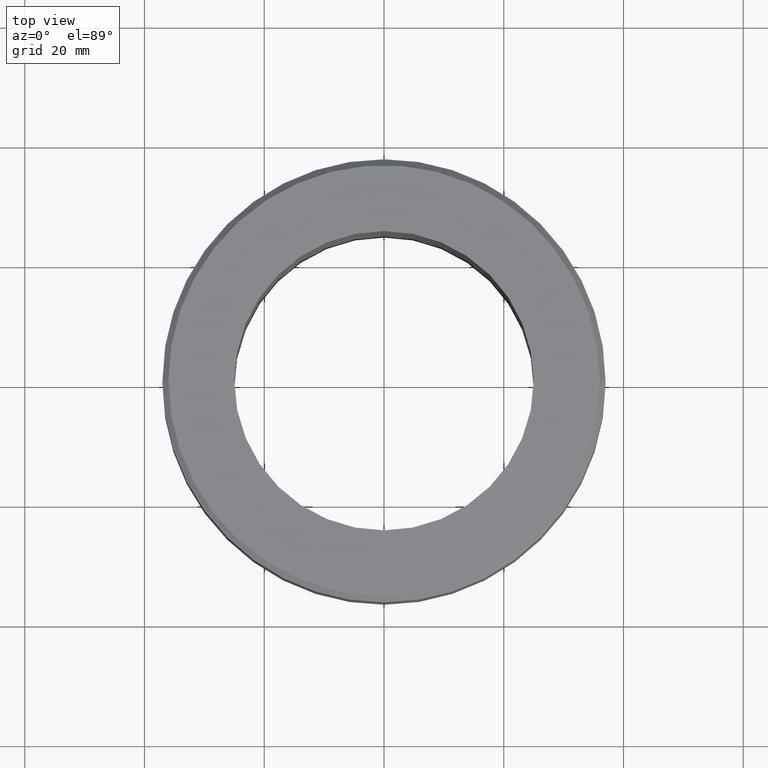
[diagram: clean part render]
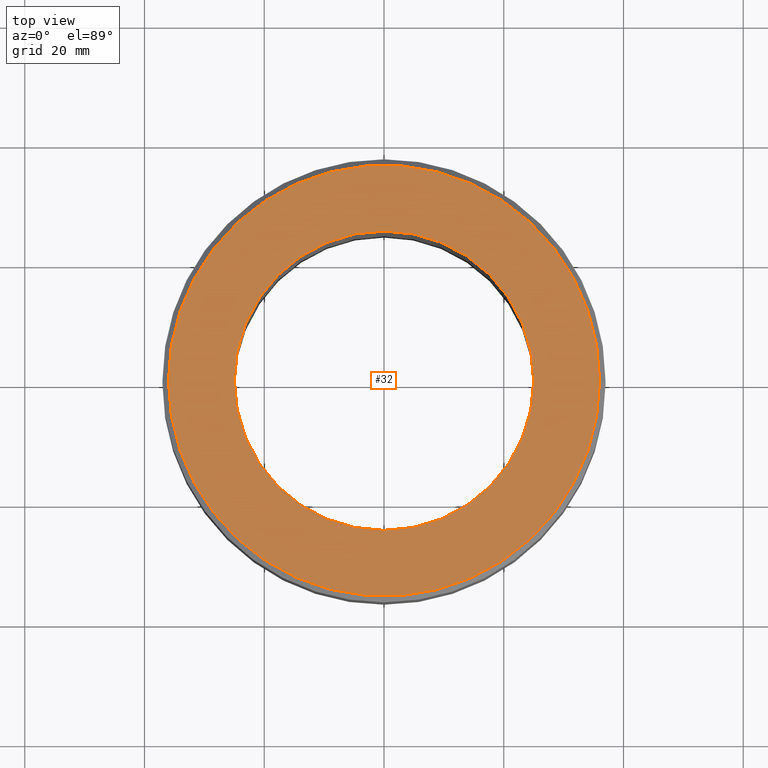
[diagram: same view with one face highlighted and labeled with its STEP entity id]
A machine part, top view. The second image highlights one B-rep face of the part: STEP entity #32.
In plain terms, the highlighted planar face has unit normal (0, -0, 1).
Its self-contained STEP definition (entity closure, byte-faithful):
#6 = CARTESIAN_POINT ( 'NONE',  ( 0.000000000000000000, 0.000000000000000000, 0.000000000000000000 ) ) ;
#9 = DIRECTION ( 'NONE',  ( 1.000000000000000000, 0.000000000000000000, 0.000000000000000000 ) ) ;
#32 = ADVANCED_FACE ( 'NONE', ( #60, #303 ), #179, .T. ) ;
#38 = AXIS2_PLACEMENT_3D ( 'NONE', #58, #355, #276 ) ;
#45 = VERTEX_POINT ( 'NONE', #502 ) ;
#46 = DIRECTION ( 'NONE',  ( 1.000000000000000000, 0.000000000000000000, 0.000000000000000000 ) ) ;
#56 = EDGE_CURVE ( 'NONE', #257, #45, #304, .T. ) ;
#58 = CARTESIAN_POINT ( 'NONE',  ( 0.000000000000000000, 0.000000000000000000, 0.000000000000000000 ) ) ;
#60 = FACE_BOUND ( 'NONE', #499, .T. ) ;
#69 = AXIS2_PLACEMENT_3D ( 'NONE', #513, #146, #322 ) ;
#83 = DIRECTION ( 'NONE',  ( -0.000000000000000000, -0.000000000000000000, 1.000000000000000000 ) ) ;
#86 = CARTESIAN_POINT ( 'NONE',  ( -36.00000000000002132, 0.000000000000000000, 0.000000000000000000 ) ) ;
#88 = CARTESIAN_POINT ( 'NONE',  ( 0.000000000000000000, 0.000000000000000000, 0.000000000000000000 ) ) ;
#94 = AXIS2_PLACEMENT_3D ( 'NONE', #220, #338, #185 ) ;
#99 = ORIENTED_EDGE ( 'NONE', *, *, #277, .F. ) ;
#146 = DIRECTION ( 'NONE',  ( -0.000000000000000000, -0.000000000000000000, 1.000000000000000000 ) ) ;
#154 = ORIENTED_EDGE ( 'NONE', *, *, #204, .T. ) ;
#175 = DIRECTION ( 'NONE',  ( -0.000000000000000000, -0.000000000000000000, 1.000000000000000000 ) ) ;
#179 = PLANE ( 'NONE',  #94 ) ;
#185 = DIRECTION ( 'NONE',  ( 1.000000000000000000, 0.000000000000000000, 0.000000000000000000 ) ) ;
#187 = EDGE_LOOP ( 'NONE', ( #154, #342 ) ) ;
#198 = CIRCLE ( 'NONE', #468, 36.00000000000002132 ) ;
#199 = VERTEX_POINT ( 'NONE', #86 ) ;
#204 = EDGE_CURVE ( 'NONE', #199, #278, #198, .T. ) ;
#214 = CIRCLE ( 'NONE', #38, 36.00000000000002132 ) ;
#220 = CARTESIAN_POINT ( 'NONE',  ( 0.000000000000000000, 0.000000000000000000, 0.000000000000000000 ) ) ;
#257 = VERTEX_POINT ( 'NONE', #376 ) ;
#276 = DIRECTION ( 'NONE',  ( 1.000000000000000000, 0.000000000000000000, 0.000000000000000000 ) ) ;
#277 = EDGE_CURVE ( 'NONE', #45, #257, #416, .T. ) ;
#278 = VERTEX_POINT ( 'NONE', #335 ) ;
#303 = FACE_OUTER_BOUND ( 'NONE', #187, .T. ) ;
#304 = CIRCLE ( 'NONE', #69, 25.00000000000000000 ) ;
#312 = EDGE_CURVE ( 'NONE', #278, #199, #214, .T. ) ;
#322 = DIRECTION ( 'NONE',  ( 1.000000000000000000, 0.000000000000000000, 0.000000000000000000 ) ) ;
#335 = CARTESIAN_POINT ( 'NONE',  ( 36.00000000000002132, 4.469960816887840007E-15, 0.000000000000000000 ) ) ;
#338 = DIRECTION ( 'NONE',  ( 0.000000000000000000, -0.000000000000000000, 1.000000000000000000 ) ) ;
#342 = ORIENTED_EDGE ( 'NONE', *, *, #312, .T. ) ;
#355 = DIRECTION ( 'NONE',  ( -0.000000000000000000, -0.000000000000000000, 1.000000000000000000 ) ) ;
#376 = CARTESIAN_POINT ( 'NONE',  ( -25.00000000000000000, 3.061616997868383043E-15, 0.000000000000000000 ) ) ;
#382 = AXIS2_PLACEMENT_3D ( 'NONE', #6, #175, #9 ) ;
#399 = ORIENTED_EDGE ( 'NONE', *, *, #56, .F. ) ;
#416 = CIRCLE ( 'NONE', #382, 25.00000000000000000 ) ;
#468 = AXIS2_PLACEMENT_3D ( 'NONE', #88, #83, #46 ) ;
#499 = EDGE_LOOP ( 'NONE', ( #99, #399 ) ) ;
#502 = CARTESIAN_POINT ( 'NONE',  ( 25.00000000000000000, 0.000000000000000000, 0.000000000000000000 ) ) ;
#513 = CARTESIAN_POINT ( 'NONE',  ( 0.000000000000000000, 0.000000000000000000, 0.000000000000000000 ) ) ;